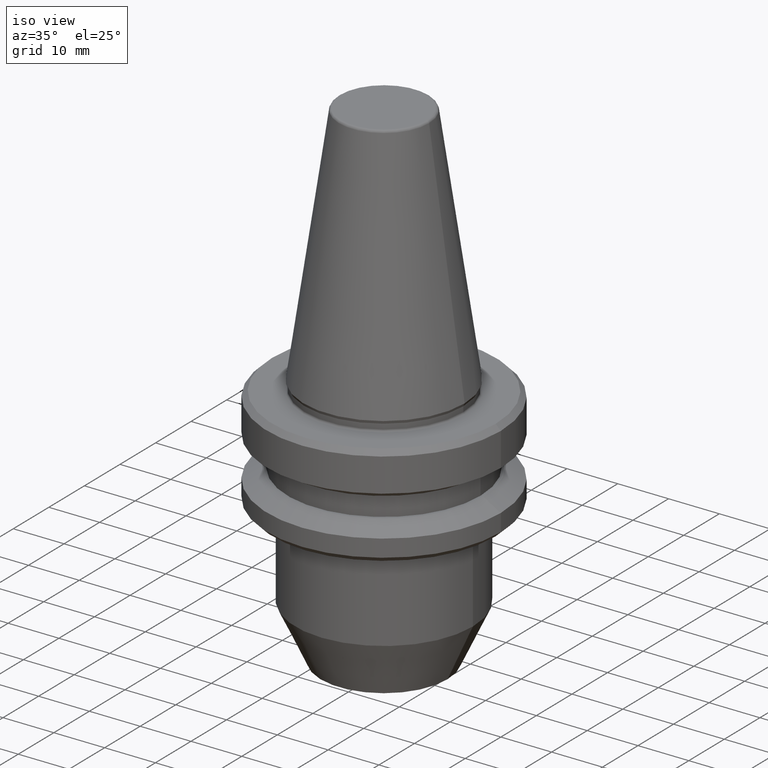
[diagram: clean part render]
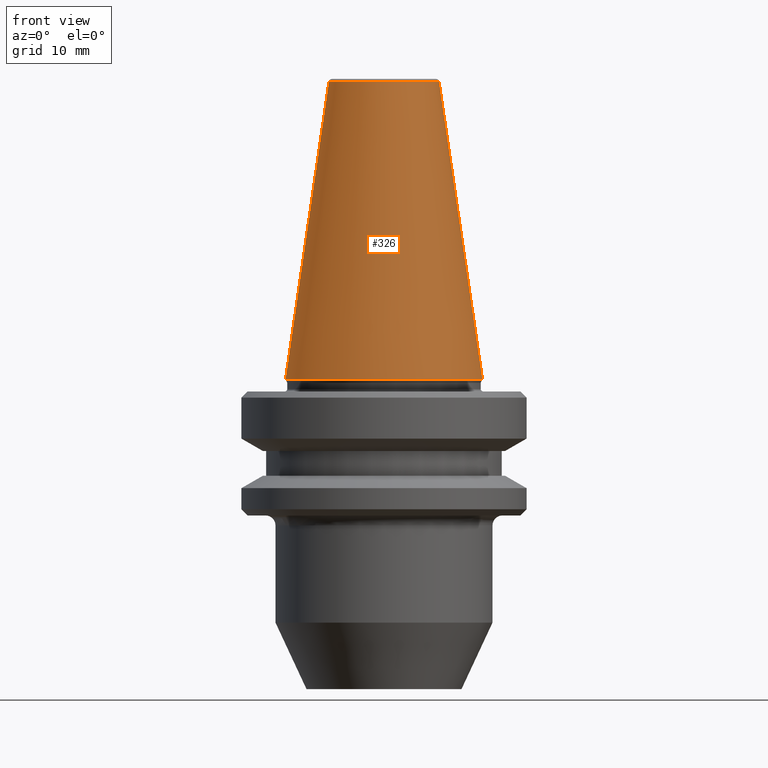
[diagram: tour spotlight — one face highlighted and labeled with its STEP entity id]
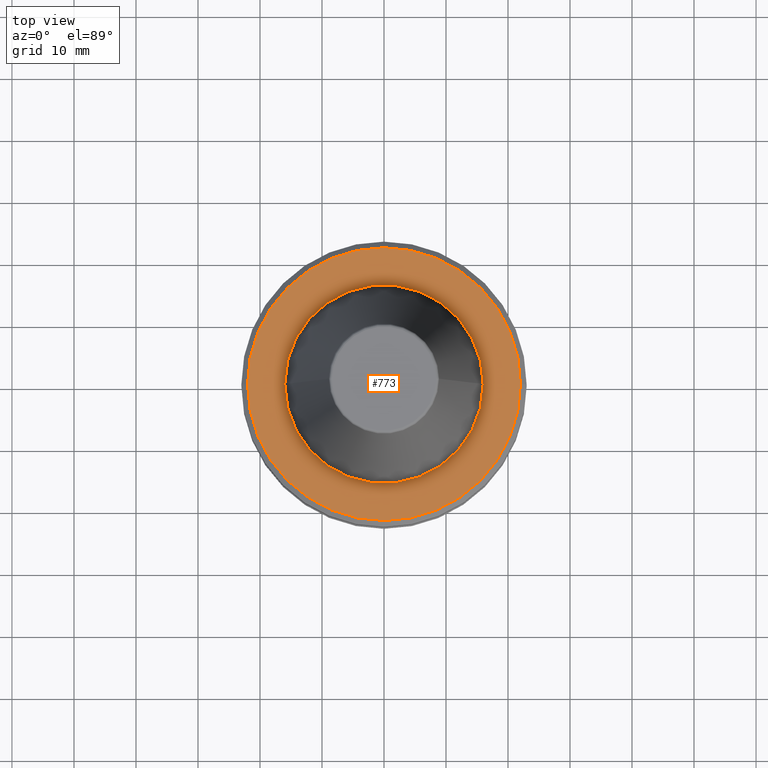
[diagram: tour spotlight — one face highlighted and labeled with its STEP entity id]
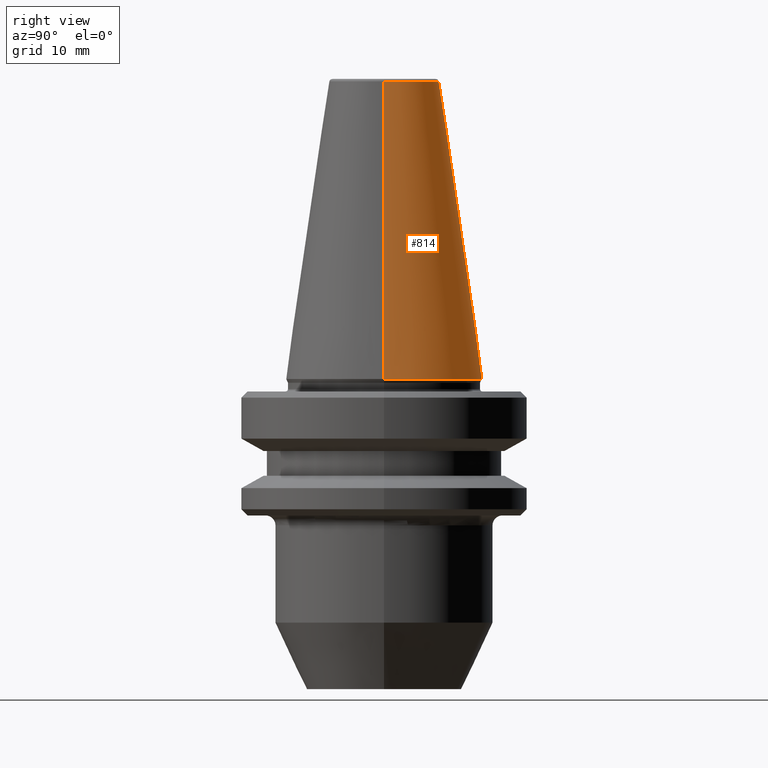
[diagram: tour spotlight — one face highlighted and labeled with its STEP entity id]
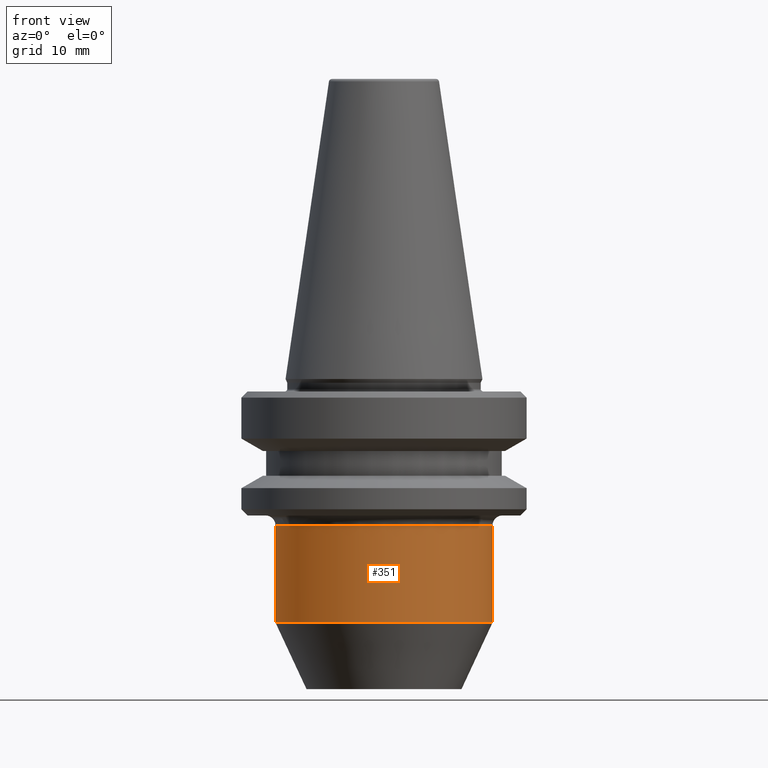
[diagram: tour spotlight — one face highlighted and labeled with its STEP entity id]
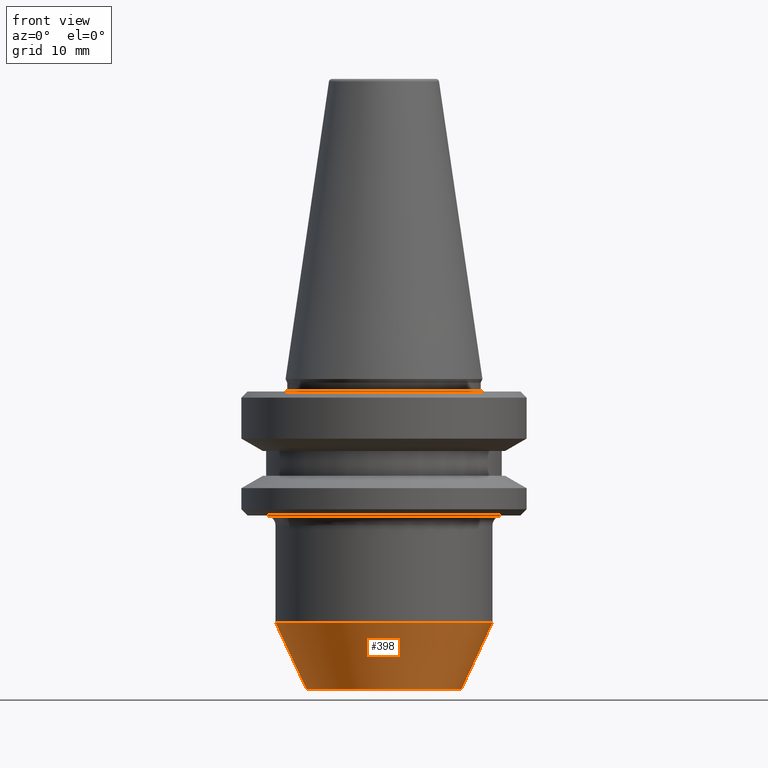
[diagram: tour spotlight — one face highlighted and labeled with its STEP entity id]
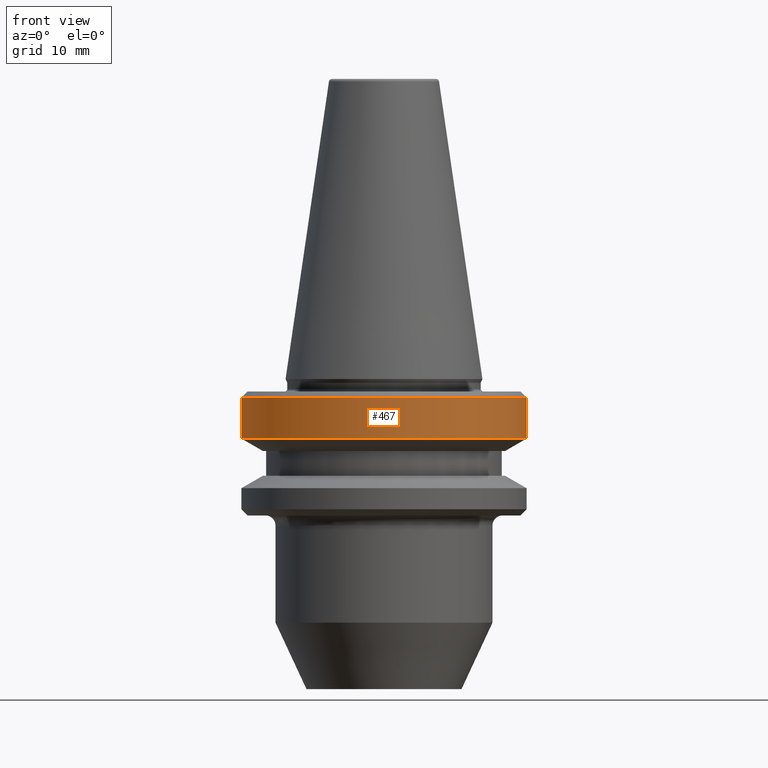
[diagram: tour spotlight — one face highlighted and labeled with its STEP entity id]
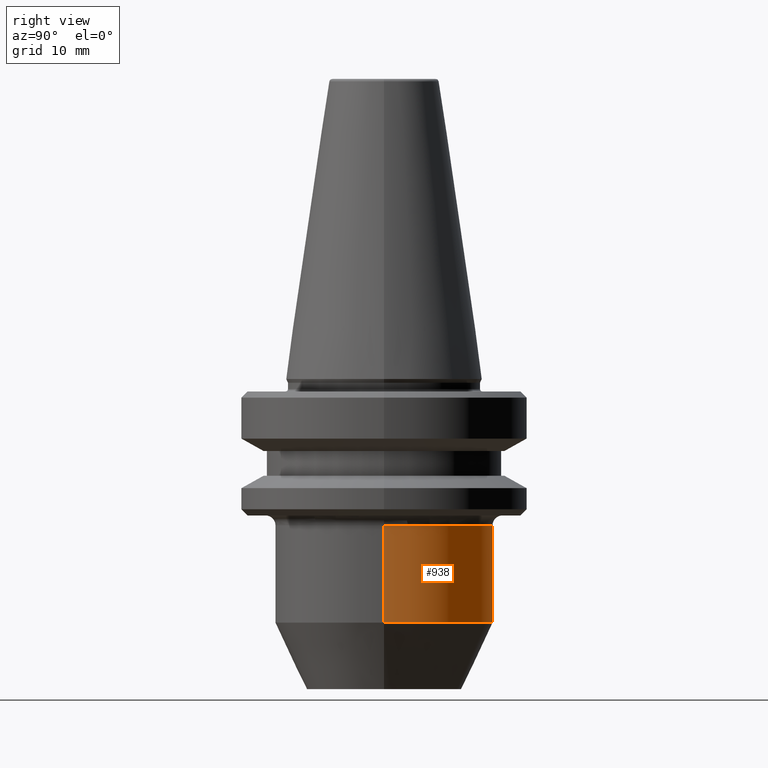
[diagram: tour spotlight — one face highlighted and labeled with its STEP entity id]
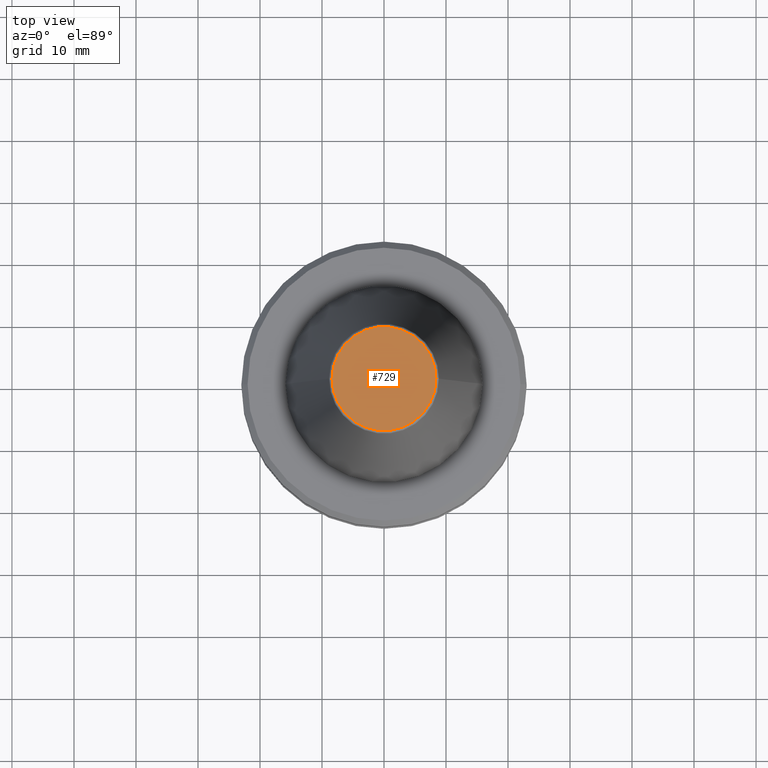
[diagram: tour spotlight — one face highlighted and labeled with its STEP entity id]
A machine part: a face-by-face anatomy tour. The part has 36 B-rep faces; the first image is the clean iso view, then the 8 largest visible faces are spotlighted one at a time (largest first), each with its STEP entity span.

Face 1 — front view, entity #326. In plain terms, the highlighted conical surface has half-angle 8.297 deg.
Definition (entity closure, byte-faithful):
#5 = EDGE_CURVE ( 'NONE', #921, #519, #388, .T. ) ;
#7 = DIRECTION ( 'NONE',  ( 0.1443082268834997600, 1.767266081435079900E-017, -0.9895327865481469100 ) ) ;
#48 = CARTESIAN_POINT ( 'NONE',  ( 15.87499999999930700, 0.0000000000000000000, 2.220446049250313100E-013 ) ) ;
#86 = VERTEX_POINT ( 'NONE', #355 ) ;
#92 = DIRECTION ( 'NONE',  ( -1.000000000000000000, 0.0000000000000000000, 0.0000000000000000000 ) ) ;
#119 = FACE_OUTER_BOUND ( 'NONE', #481, .T. ) ;
#133 = EDGE_CURVE ( 'NONE', #519, #392, #889, .T. ) ;
#147 = ORIENTED_EDGE ( 'NONE', *, *, #614, .F. ) ;
#190 = VECTOR ( 'NONE', #646, 1000.000000000000100 ) ;
#302 = CARTESIAN_POINT ( 'NONE',  ( -15.87499999999930700, 0.0000000000000000000, 2.220446049250313100E-013 ) ) ;
#326 = ADVANCED_FACE ( 'NONE', ( #119 ), #476, .T. ) ;
#335 = DIRECTION ( 'NONE',  ( 0.0000000000000000000, 0.0000000000000000000, -1.000000000000000000 ) ) ;
#336 = ORIENTED_EDGE ( 'NONE', *, *, #133, .T. ) ;
#342 = CARTESIAN_POINT ( 'NONE',  ( 15.87499999999930700, 1.944126793646338400E-015, 2.220446049250313100E-013 ) ) ;
#348 = AXIS2_PLACEMENT_3D ( 'NONE', #448, #335, #92 ) ;
#355 = CARTESIAN_POINT ( 'NONE',  ( 8.878994820583395500, 1.515745026156838400E-015, 47.97215411344146900 ) ) ;
#388 = LINE ( 'NONE', #302, #190 ) ;
#392 = VERTEX_POINT ( 'NONE', #48 ) ;
#409 = CIRCLE ( 'NONE', #671, 8.878994820583395500 ) ;
#448 = CARTESIAN_POINT ( 'NONE',  ( 0.0000000000000000000, 0.0000000000000000000, 2.220446049250313100E-013 ) ) ;
#476 = CONICAL_SURFACE ( 'NONE', #348, 15.87499999999930700, 0.1448138461595519000 ) ;
#478 = DIRECTION ( 'NONE',  ( -0.0000000000000000000, -0.0000000000000000000, 1.000000000000000000 ) ) ;
#481 = EDGE_LOOP ( 'NONE', ( #147, #772, #833, #336 ) ) ;
#519 = VERTEX_POINT ( 'NONE', #771 ) ;
#573 = DIRECTION ( 'NONE',  ( -0.0000000000000000000, -0.0000000000000000000, 1.000000000000000000 ) ) ;
#587 = VECTOR ( 'NONE', #7, 1000.000000000000100 ) ;
#595 = EDGE_CURVE ( 'NONE', #921, #86, #409, .T. ) ;
#614 = EDGE_CURVE ( 'NONE', #86, #392, #810, .T. ) ;
#626 = CARTESIAN_POINT ( 'NONE',  ( -8.878994820583395500, 0.0000000000000000000, 47.97215411344146900 ) ) ;
#646 = DIRECTION ( 'NONE',  ( -0.1443082268834997600, 0.0000000000000000000, -0.9895327865481469100 ) ) ;
#659 = CARTESIAN_POINT ( 'NONE',  ( 0.0000000000000000000, 0.0000000000000000000, 2.220446049250313100E-013 ) ) ;
#671 = AXIS2_PLACEMENT_3D ( 'NONE', #807, #573, #680 ) ;
#680 = DIRECTION ( 'NONE',  ( 1.000000000000000000, 0.0000000000000000000, 0.0000000000000000000 ) ) ;
#716 = DIRECTION ( 'NONE',  ( 1.000000000000000000, 0.0000000000000000000, 0.0000000000000000000 ) ) ;
#771 = CARTESIAN_POINT ( 'NONE',  ( -15.87499999999930700, 1.944126793646338400E-015, 2.220446049250313100E-013 ) ) ;
#772 = ORIENTED_EDGE ( 'NONE', *, *, #595, .F. ) ;
#807 = CARTESIAN_POINT ( 'NONE',  ( 0.0000000000000000000, 0.0000000000000000000, 47.97215411344146900 ) ) ;
#810 = LINE ( 'NONE', #342, #587 ) ;
#820 = AXIS2_PLACEMENT_3D ( 'NONE', #659, #478, #716 ) ;
#833 = ORIENTED_EDGE ( 'NONE', *, *, #5, .T. ) ;
#889 = CIRCLE ( 'NONE', #820, 15.87499999999930700 ) ;
#921 = VERTEX_POINT ( 'NONE', #626 ) ;

Face 2 — top view, entity #773. In plain terms, the highlighted planar face has unit normal (0, 0, -1).
Definition (entity closure, byte-faithful):
#20 = CIRCLE ( 'NONE', #256, 16.00000000000056800 ) ;
#23 = CARTESIAN_POINT ( 'NONE',  ( -22.00000000000002100, 0.0000000000000000000, -1.999999999999779700 ) ) ;
#43 = CIRCLE ( 'NONE', #330, 22.00000000000002100 ) ;
#50 = AXIS2_PLACEMENT_3D ( 'NONE', #978, #265, #160 ) ;
#57 = CARTESIAN_POINT ( 'NONE',  ( 0.0000000000000000000, 0.0000000000000000000, -1.999999999999779700 ) ) ;
#67 = DIRECTION ( 'NONE',  ( 1.000000000000000000, 0.0000000000000000000, 0.0000000000000000000 ) ) ;
#84 = EDGE_CURVE ( 'NONE', #782, #529, #913, .T. ) ;
#146 = CARTESIAN_POINT ( 'NONE',  ( 22.00000000000002100, 2.755455298081547100E-015, -1.999999999999779700 ) ) ;
#158 = DIRECTION ( 'NONE',  ( 0.0000000000000000000, 0.0000000000000000000, -1.000000000000000000 ) ) ;
#160 = DIRECTION ( 'NONE',  ( 1.000000000000000000, 0.0000000000000000000, 0.0000000000000000000 ) ) ;
#165 = DIRECTION ( 'NONE',  ( -0.0000000000000000000, -0.0000000000000000000, 1.000000000000000000 ) ) ;
#181 = EDGE_CURVE ( 'NONE', #529, #782, #43, .T. ) ;
#215 = AXIS2_PLACEMENT_3D ( 'NONE', #245, #158, #429 ) ;
#224 = EDGE_CURVE ( 'NONE', #960, #231, #20, .T. ) ;
#231 = VERTEX_POINT ( 'NONE', #993 ) ;
#245 = CARTESIAN_POINT ( 'NONE',  ( 0.0000000000000000000, 22.00000000000002100, -1.999999999999946300 ) ) ;
#256 = AXIS2_PLACEMENT_3D ( 'NONE', #332, #803, #864 ) ;
#263 = AXIS2_PLACEMENT_3D ( 'NONE', #904, #165, #486 ) ;
#265 = DIRECTION ( 'NONE',  ( -0.0000000000000000000, -0.0000000000000000000, 1.000000000000000000 ) ) ;
#293 = FACE_BOUND ( 'NONE', #910, .T. ) ;
#330 = AXIS2_PLACEMENT_3D ( 'NONE', #57, #976, #67 ) ;
#332 = CARTESIAN_POINT ( 'NONE',  ( 0.0000000000000000000, 0.0000000000000000000, -2.000000000000112800 ) ) ;
#346 = ORIENTED_EDGE ( 'NONE', *, *, #414, .F. ) ;
#378 = PLANE ( 'NONE',  #215 ) ;
#399 = CIRCLE ( 'NONE', #50, 16.00000000000056800 ) ;
#414 = EDGE_CURVE ( 'NONE', #231, #960, #399, .T. ) ;
#429 = DIRECTION ( 'NONE',  ( -1.000000000000000000, 0.0000000000000000000, -0.0000000000000000000 ) ) ;
#486 = DIRECTION ( 'NONE',  ( 1.000000000000000000, 0.0000000000000000000, 0.0000000000000000000 ) ) ;
#500 = FACE_OUTER_BOUND ( 'NONE', #760, .T. ) ;
#529 = VERTEX_POINT ( 'NONE', #146 ) ;
#535 = ORIENTED_EDGE ( 'NONE', *, *, #181, .T. ) ;
#690 = ORIENTED_EDGE ( 'NONE', *, *, #84, .T. ) ;
#760 = EDGE_LOOP ( 'NONE', ( #690, #535 ) ) ;
#773 = ADVANCED_FACE ( 'NONE', ( #293, #500 ), #378, .F. ) ;
#782 = VERTEX_POINT ( 'NONE', #23 ) ;
#803 = DIRECTION ( 'NONE',  ( -0.0000000000000000000, -0.0000000000000000000, 1.000000000000000000 ) ) ;
#823 = ORIENTED_EDGE ( 'NONE', *, *, #224, .F. ) ;
#861 = CARTESIAN_POINT ( 'NONE',  ( 16.00000000000062500, 0.0000000000000000000, -2.000000000000112800 ) ) ;
#864 = DIRECTION ( 'NONE',  ( 1.000000000000000000, 0.0000000000000000000, 0.0000000000000000000 ) ) ;
#904 = CARTESIAN_POINT ( 'NONE',  ( 0.0000000000000000000, 0.0000000000000000000, -1.999999999999779700 ) ) ;
#910 = EDGE_LOOP ( 'NONE', ( #823, #346 ) ) ;
#913 = CIRCLE ( 'NONE', #263, 22.00000000000002100 ) ;
#960 = VERTEX_POINT ( 'NONE', #861 ) ;
#976 = DIRECTION ( 'NONE',  ( -0.0000000000000000000, -0.0000000000000000000, 1.000000000000000000 ) ) ;
#978 = CARTESIAN_POINT ( 'NONE',  ( 0.0000000000000000000, 0.0000000000000000000, -2.000000000000112800 ) ) ;
#993 = CARTESIAN_POINT ( 'NONE',  ( -16.00000000000062500, 1.959434878635841700E-015, -2.000000000000112800 ) ) ;

Face 3 — right view, entity #814. In plain terms, the highlighted conical surface has half-angle 8.297 deg.
Definition (entity closure, byte-faithful):
#5 = EDGE_CURVE ( 'NONE', #921, #519, #388, .T. ) ;
#7 = DIRECTION ( 'NONE',  ( 0.1443082268834997600, 1.767266081435079900E-017, -0.9895327865481469100 ) ) ;
#48 = CARTESIAN_POINT ( 'NONE',  ( 15.87499999999930700, 0.0000000000000000000, 2.220446049250313100E-013 ) ) ;
#83 = DIRECTION ( 'NONE',  ( 0.0000000000000000000, 0.0000000000000000000, -1.000000000000000000 ) ) ;
#86 = VERTEX_POINT ( 'NONE', #355 ) ;
#190 = VECTOR ( 'NONE', #646, 1000.000000000000100 ) ;
#191 = AXIS2_PLACEMENT_3D ( 'NONE', #737, #735, #799 ) ;
#248 = AXIS2_PLACEMENT_3D ( 'NONE', #1000, #83, #892 ) ;
#302 = CARTESIAN_POINT ( 'NONE',  ( -15.87499999999930700, 0.0000000000000000000, 2.220446049250313100E-013 ) ) ;
#327 = CIRCLE ( 'NONE', #191, 15.87499999999930700 ) ;
#334 = ORIENTED_EDGE ( 'NONE', *, *, #465, .F. ) ;
#338 = DIRECTION ( 'NONE',  ( 1.000000000000000000, 0.0000000000000000000, 0.0000000000000000000 ) ) ;
#342 = CARTESIAN_POINT ( 'NONE',  ( 15.87499999999930700, 1.944126793646338400E-015, 2.220446049250313100E-013 ) ) ;
#355 = CARTESIAN_POINT ( 'NONE',  ( 8.878994820583395500, 1.515745026156838400E-015, 47.97215411344146900 ) ) ;
#387 = DIRECTION ( 'NONE',  ( -0.0000000000000000000, -0.0000000000000000000, 1.000000000000000000 ) ) ;
#388 = LINE ( 'NONE', #302, #190 ) ;
#392 = VERTEX_POINT ( 'NONE', #48 ) ;
#465 = EDGE_CURVE ( 'NONE', #86, #921, #968, .T. ) ;
#471 = CONICAL_SURFACE ( 'NONE', #248, 15.87499999999930700, 0.1448138461595519000 ) ;
#491 = ORIENTED_EDGE ( 'NONE', *, *, #950, .T. ) ;
#519 = VERTEX_POINT ( 'NONE', #771 ) ;
#568 = EDGE_LOOP ( 'NONE', ( #334, #678, #491, #755 ) ) ;
#587 = VECTOR ( 'NONE', #7, 1000.000000000000100 ) ;
#614 = EDGE_CURVE ( 'NONE', #86, #392, #810, .T. ) ;
#626 = CARTESIAN_POINT ( 'NONE',  ( -8.878994820583395500, 0.0000000000000000000, 47.97215411344146900 ) ) ;
#646 = DIRECTION ( 'NONE',  ( -0.1443082268834997600, 0.0000000000000000000, -0.9895327865481469100 ) ) ;
#678 = ORIENTED_EDGE ( 'NONE', *, *, #614, .T. ) ;
#735 = DIRECTION ( 'NONE',  ( -0.0000000000000000000, -0.0000000000000000000, 1.000000000000000000 ) ) ;
#737 = CARTESIAN_POINT ( 'NONE',  ( 0.0000000000000000000, 0.0000000000000000000, 2.220446049250313100E-013 ) ) ;
#755 = ORIENTED_EDGE ( 'NONE', *, *, #5, .F. ) ;
#771 = CARTESIAN_POINT ( 'NONE',  ( -15.87499999999930700, 1.944126793646338400E-015, 2.220446049250313100E-013 ) ) ;
#799 = DIRECTION ( 'NONE',  ( 1.000000000000000000, 0.0000000000000000000, 0.0000000000000000000 ) ) ;
#810 = LINE ( 'NONE', #342, #587 ) ;
#814 = ADVANCED_FACE ( 'NONE', ( #867 ), #471, .T. ) ;
#839 = AXIS2_PLACEMENT_3D ( 'NONE', #932, #387, #338 ) ;
#867 = FACE_OUTER_BOUND ( 'NONE', #568, .T. ) ;
#892 = DIRECTION ( 'NONE',  ( -1.000000000000000000, 0.0000000000000000000, 0.0000000000000000000 ) ) ;
#921 = VERTEX_POINT ( 'NONE', #626 ) ;
#932 = CARTESIAN_POINT ( 'NONE',  ( 0.0000000000000000000, 0.0000000000000000000, 47.97215411344146900 ) ) ;
#950 = EDGE_CURVE ( 'NONE', #392, #519, #327, .T. ) ;
#968 = CIRCLE ( 'NONE', #839, 8.878994820583395500 ) ;
#1000 = CARTESIAN_POINT ( 'NONE',  ( 0.0000000000000000000, 0.0000000000000000000, 2.220446049250313100E-013 ) ) ;

Face 4 — front view, entity #351. In plain terms, the highlighted cylindrical surface (partial cylindrical patch) has radius 17.5 mm, axis along (-0, -0, 1).
Definition (entity closure, byte-faithful):
#11 = CARTESIAN_POINT ( 'NONE',  ( -17.49999999999849000, 2.143131898507683300E-015, 106.7296997704041000 ) ) ;
#12 = EDGE_CURVE ( 'NONE', #570, #492, #775, .T. ) ;
#32 = VERTEX_POINT ( 'NONE', #415 ) ;
#55 = AXIS2_PLACEMENT_3D ( 'NONE', #178, #756, #564 ) ;
#62 = EDGE_CURVE ( 'NONE', #32, #672, #141, .T. ) ;
#124 = ORIENTED_EDGE ( 'NONE', *, *, #511, .F. ) ;
#141 = LINE ( 'NONE', #11, #518 ) ;
#178 = CARTESIAN_POINT ( 'NONE',  ( 0.0000000000000000000, 0.0000000000000000000, -23.59999999999983100 ) ) ;
#202 = CIRCLE ( 'NONE', #895, 17.49999999999851500 ) ;
#218 = DIRECTION ( 'NONE',  ( -0.0000000000000000000, -0.0000000000000000000, 1.000000000000000000 ) ) ;
#230 = CARTESIAN_POINT ( 'NONE',  ( -17.49999999999846200, 2.143131898507681700E-015, -23.59999999999983100 ) ) ;
#233 = ORIENTED_EDGE ( 'NONE', *, *, #62, .F. ) ;
#331 = CIRCLE ( 'NONE', #55, 17.49999999999846200 ) ;
#351 = ADVANCED_FACE ( 'NONE', ( #523 ), #651, .T. ) ;
#375 = DIRECTION ( 'NONE',  ( -0.0000000000000000000, -0.0000000000000000000, 1.000000000000000000 ) ) ;
#401 = EDGE_CURVE ( 'NONE', #32, #570, #202, .T. ) ;
#415 = CARTESIAN_POINT ( 'NONE',  ( -17.49999999999851500, 2.143131898507686400E-015, -39.27746539745256600 ) ) ;
#463 = CARTESIAN_POINT ( 'NONE',  ( 17.49999999999846200, 0.0000000000000000000, -23.59999999999983100 ) ) ;
#492 = VERTEX_POINT ( 'NONE', #463 ) ;
#506 = DIRECTION ( 'NONE',  ( 1.000000000000000000, 0.0000000000000000000, 0.0000000000000000000 ) ) ;
#511 = EDGE_CURVE ( 'NONE', #672, #492, #331, .T. ) ;
#513 = ORIENTED_EDGE ( 'NONE', *, *, #12, .T. ) ;
#518 = VECTOR ( 'NONE', #584, 1000.000000000000000 ) ;
#523 = FACE_OUTER_BOUND ( 'NONE', #804, .T. ) ;
#563 = VECTOR ( 'NONE', #375, 1000.000000000000000 ) ;
#564 = DIRECTION ( 'NONE',  ( 1.000000000000000000, 0.0000000000000000000, 0.0000000000000000000 ) ) ;
#570 = VERTEX_POINT ( 'NONE', #779 ) ;
#584 = DIRECTION ( 'NONE',  ( -0.0000000000000000000, -0.0000000000000000000, 1.000000000000000000 ) ) ;
#644 = DIRECTION ( 'NONE',  ( 1.000000000000000000, 0.0000000000000000000, 0.0000000000000000000 ) ) ;
#651 = CYLINDRICAL_SURFACE ( 'NONE', #786, 17.49999999999849000 ) ;
#657 = CARTESIAN_POINT ( 'NONE',  ( 17.49999999999849000, 0.0000000000000000000, 106.7296997704041000 ) ) ;
#672 = VERTEX_POINT ( 'NONE', #230 ) ;
#756 = DIRECTION ( 'NONE',  ( -0.0000000000000000000, -0.0000000000000000000, 1.000000000000000000 ) ) ;
#775 = LINE ( 'NONE', #657, #563 ) ;
#779 = CARTESIAN_POINT ( 'NONE',  ( 17.49999999999851500, 0.0000000000000000000, -39.27746539745256600 ) ) ;
#786 = AXIS2_PLACEMENT_3D ( 'NONE', #809, #218, #644 ) ;
#804 = EDGE_LOOP ( 'NONE', ( #233, #811, #513, #124 ) ) ;
#809 = CARTESIAN_POINT ( 'NONE',  ( 0.0000000000000000000, 0.0000000000000000000, 106.7296997704041000 ) ) ;
#811 = ORIENTED_EDGE ( 'NONE', *, *, #401, .T. ) ;
#818 = CARTESIAN_POINT ( 'NONE',  ( 0.0000000000000000000, 0.0000000000000000000, -39.27746539745256600 ) ) ;
#895 = AXIS2_PLACEMENT_3D ( 'NONE', #818, #901, #506 ) ;
#901 = DIRECTION ( 'NONE',  ( -0.0000000000000000000, -0.0000000000000000000, 1.000000000000000000 ) ) ;

Face 5 — front view, entity #398. In plain terms, the highlighted conical surface has half-angle 25 deg.
Definition (entity closure, byte-faithful):
#32 = VERTEX_POINT ( 'NONE', #415 ) ;
#39 = ORIENTED_EDGE ( 'NONE', *, *, #183, .T. ) ;
#44 = DIRECTION ( 'NONE',  ( -0.4226182617407099300, 5.175581015019787600E-017, 0.9063077870366450500 ) ) ;
#63 = DIRECTION ( 'NONE',  ( 1.000000000000000000, 0.0000000000000000000, 0.0000000000000000000 ) ) ;
#69 = DIRECTION ( 'NONE',  ( 0.4226182617407099300, 0.0000000000000000000, 0.9063077870366450500 ) ) ;
#73 = EDGE_LOOP ( 'NONE', ( #340, #39, #288, #784 ) ) ;
#145 = EDGE_CURVE ( 'NONE', #276, #32, #470, .T. ) ;
#177 = AXIS2_PLACEMENT_3D ( 'NONE', #870, #268, #228 ) ;
#183 = EDGE_CURVE ( 'NONE', #276, #204, #835, .T. ) ;
#193 = LINE ( 'NONE', #417, #551 ) ;
#202 = CIRCLE ( 'NONE', #895, 17.49999999999851500 ) ;
#204 = VERTEX_POINT ( 'NONE', #816 ) ;
#220 = CARTESIAN_POINT ( 'NONE',  ( -12.49999999999862300, 1.836970198720854900E-015, -49.99999999999980800 ) ) ;
#228 = DIRECTION ( 'NONE',  ( 1.000000000000000000, 0.0000000000000000000, 0.0000000000000000000 ) ) ;
#268 = DIRECTION ( 'NONE',  ( -0.0000000000000000000, -0.0000000000000000000, 1.000000000000000000 ) ) ;
#276 = VERTEX_POINT ( 'NONE', #220 ) ;
#286 = DIRECTION ( 'NONE',  ( -0.0000000000000000000, -0.0000000000000000000, 1.000000000000000000 ) ) ;
#288 = ORIENTED_EDGE ( 'NONE', *, *, #694, .T. ) ;
#340 = ORIENTED_EDGE ( 'NONE', *, *, #145, .F. ) ;
#398 = ADVANCED_FACE ( 'NONE', ( #846 ), #998, .T. ) ;
#401 = EDGE_CURVE ( 'NONE', #32, #570, #202, .T. ) ;
#415 = CARTESIAN_POINT ( 'NONE',  ( -17.49999999999851500, 2.143131898507686400E-015, -39.27746539745256600 ) ) ;
#417 = CARTESIAN_POINT ( 'NONE',  ( 12.49999999999862300, 0.0000000000000000000, -49.99999999999980800 ) ) ;
#470 = LINE ( 'NONE', #525, #650 ) ;
#506 = DIRECTION ( 'NONE',  ( 1.000000000000000000, 0.0000000000000000000, 0.0000000000000000000 ) ) ;
#525 = CARTESIAN_POINT ( 'NONE',  ( -12.49999999999862300, 1.530808498934022900E-015, -49.99999999999980800 ) ) ;
#551 = VECTOR ( 'NONE', #69, 1000.000000000000000 ) ;
#570 = VERTEX_POINT ( 'NONE', #779 ) ;
#650 = VECTOR ( 'NONE', #44, 1000.000000000000000 ) ;
#694 = EDGE_CURVE ( 'NONE', #204, #570, #193, .T. ) ;
#723 = AXIS2_PLACEMENT_3D ( 'NONE', #912, #286, #63 ) ;
#779 = CARTESIAN_POINT ( 'NONE',  ( 17.49999999999851500, 0.0000000000000000000, -39.27746539745256600 ) ) ;
#784 = ORIENTED_EDGE ( 'NONE', *, *, #401, .F. ) ;
#816 = CARTESIAN_POINT ( 'NONE',  ( 12.49999999999862300, 0.0000000000000000000, -49.99999999999980800 ) ) ;
#818 = CARTESIAN_POINT ( 'NONE',  ( 0.0000000000000000000, 0.0000000000000000000, -39.27746539745256600 ) ) ;
#835 = CIRCLE ( 'NONE', #723, 12.49999999999862300 ) ;
#846 = FACE_OUTER_BOUND ( 'NONE', #73, .T. ) ;
#870 = CARTESIAN_POINT ( 'NONE',  ( 0.0000000000000000000, 0.0000000000000000000, -49.99999999999980800 ) ) ;
#895 = AXIS2_PLACEMENT_3D ( 'NONE', #818, #901, #506 ) ;
#901 = DIRECTION ( 'NONE',  ( -0.0000000000000000000, -0.0000000000000000000, 1.000000000000000000 ) ) ;
#912 = CARTESIAN_POINT ( 'NONE',  ( 0.0000000000000000000, 0.0000000000000000000, -49.99999999999980800 ) ) ;
#998 = CONICAL_SURFACE ( 'NONE', #177, 12.49999999999862300, 0.4363323129985939900 ) ;

Face 6 — front view, entity #467. In plain terms, the highlighted cylindrical surface (partial cylindrical patch) has radius 23 mm, axis along (-0, -0, 1).
Definition (entity closure, byte-faithful):
#2 = CARTESIAN_POINT ( 'NONE',  ( 23.00000000000002100, 0.0000000000000000000, 106.7296997704041000 ) ) ;
#18 = CARTESIAN_POINT ( 'NONE',  ( 0.0000000000000000000, 0.0000000000000000000, 106.7296997704041000 ) ) ;
#22 = CARTESIAN_POINT ( 'NONE',  ( 0.0000000000000000000, 0.0000000000000000000, -9.600117335054392200 ) ) ;
#30 = DIRECTION ( 'NONE',  ( -0.0000000000000000000, -0.0000000000000000000, 1.000000000000000000 ) ) ;
#52 = VERTEX_POINT ( 'NONE', #366 ) ;
#82 = EDGE_CURVE ( 'NONE', #52, #608, #321, .T. ) ;
#137 = AXIS2_PLACEMENT_3D ( 'NONE', #538, #30, #632 ) ;
#154 = EDGE_LOOP ( 'NONE', ( #808, #697, #329, #173 ) ) ;
#172 = EDGE_CURVE ( 'NONE', #878, #206, #243, .T. ) ;
#173 = ORIENTED_EDGE ( 'NONE', *, *, #962, .F. ) ;
#182 = FACE_OUTER_BOUND ( 'NONE', #154, .T. ) ;
#206 = VERTEX_POINT ( 'NONE', #652 ) ;
#243 = LINE ( 'NONE', #611, #642 ) ;
#284 = DIRECTION ( 'NONE',  ( -0.0000000000000000000, -0.0000000000000000000, 1.000000000000000000 ) ) ;
#321 = LINE ( 'NONE', #2, #698 ) ;
#329 = ORIENTED_EDGE ( 'NONE', *, *, #82, .T. ) ;
#339 = DIRECTION ( 'NONE',  ( -0.0000000000000000000, -0.0000000000000000000, 1.000000000000000000 ) ) ;
#366 = CARTESIAN_POINT ( 'NONE',  ( 23.00000000000002100, 0.0000000000000000000, -9.600117335054392200 ) ) ;
#435 = CARTESIAN_POINT ( 'NONE',  ( -23.00000000000002100, 2.816687638038914700E-015, -9.600117335054392200 ) ) ;
#467 = ADVANCED_FACE ( 'NONE', ( #182 ), #736, .T. ) ;
#538 = CARTESIAN_POINT ( 'NONE',  ( 0.0000000000000000000, 0.0000000000000000000, -2.999999999999891600 ) ) ;
#545 = DIRECTION ( 'NONE',  ( 1.000000000000000000, 0.0000000000000000000, 0.0000000000000000000 ) ) ;
#608 = VERTEX_POINT ( 'NONE', #967 ) ;
#611 = CARTESIAN_POINT ( 'NONE',  ( -23.00000000000002100, 2.816687638038915100E-015, 106.7296997704041000 ) ) ;
#632 = DIRECTION ( 'NONE',  ( 1.000000000000000000, 0.0000000000000000000, 0.0000000000000000000 ) ) ;
#642 = VECTOR ( 'NONE', #339, 1000.000000000000000 ) ;
#648 = DIRECTION ( 'NONE',  ( -0.0000000000000000000, -0.0000000000000000000, 1.000000000000000000 ) ) ;
#652 = CARTESIAN_POINT ( 'NONE',  ( -23.00000000000002100, 2.816687638038915100E-015, -2.999999999999891600 ) ) ;
#681 = CIRCLE ( 'NONE', #741, 23.00000000000002100 ) ;
#691 = DIRECTION ( 'NONE',  ( -0.0000000000000000000, -0.0000000000000000000, 1.000000000000000000 ) ) ;
#697 = ORIENTED_EDGE ( 'NONE', *, *, #791, .T. ) ;
#698 = VECTOR ( 'NONE', #648, 1000.000000000000000 ) ;
#732 = DIRECTION ( 'NONE',  ( 1.000000000000000000, 0.0000000000000000000, 0.0000000000000000000 ) ) ;
#736 = CYLINDRICAL_SURFACE ( 'NONE', #871, 23.00000000000002100 ) ;
#741 = AXIS2_PLACEMENT_3D ( 'NONE', #22, #691, #545 ) ;
#791 = EDGE_CURVE ( 'NONE', #878, #52, #681, .T. ) ;
#808 = ORIENTED_EDGE ( 'NONE', *, *, #172, .F. ) ;
#871 = AXIS2_PLACEMENT_3D ( 'NONE', #18, #284, #732 ) ;
#878 = VERTEX_POINT ( 'NONE', #435 ) ;
#924 = CIRCLE ( 'NONE', #137, 23.00000000000002100 ) ;
#962 = EDGE_CURVE ( 'NONE', #206, #608, #924, .T. ) ;
#967 = CARTESIAN_POINT ( 'NONE',  ( 23.00000000000002100, 0.0000000000000000000, -2.999999999999891600 ) ) ;

Face 7 — right view, entity #938. In plain terms, the highlighted cylindrical surface (partial cylindrical patch) has radius 17.5 mm, axis along (-0, -0, 1).
Definition (entity closure, byte-faithful):
#11 = CARTESIAN_POINT ( 'NONE',  ( -17.49999999999849000, 2.143131898507683300E-015, 106.7296997704041000 ) ) ;
#12 = EDGE_CURVE ( 'NONE', #570, #492, #775, .T. ) ;
#32 = VERTEX_POINT ( 'NONE', #415 ) ;
#62 = EDGE_CURVE ( 'NONE', #32, #672, #141, .T. ) ;
#87 = DIRECTION ( 'NONE',  ( 1.000000000000000000, 0.0000000000000000000, 0.0000000000000000000 ) ) ;
#97 = CARTESIAN_POINT ( 'NONE',  ( 0.0000000000000000000, 0.0000000000000000000, 106.7296997704041000 ) ) ;
#102 = CYLINDRICAL_SURFACE ( 'NONE', #826, 17.49999999999849000 ) ;
#141 = LINE ( 'NONE', #11, #518 ) ;
#150 = FACE_OUTER_BOUND ( 'NONE', #704, .T. ) ;
#230 = CARTESIAN_POINT ( 'NONE',  ( -17.49999999999846200, 2.143131898507681700E-015, -23.59999999999983100 ) ) ;
#251 = ORIENTED_EDGE ( 'NONE', *, *, #347, .F. ) ;
#323 = CIRCLE ( 'NONE', #667, 17.49999999999846200 ) ;
#347 = EDGE_CURVE ( 'NONE', #492, #672, #323, .T. ) ;
#372 = CIRCLE ( 'NONE', #566, 17.49999999999851500 ) ;
#375 = DIRECTION ( 'NONE',  ( -0.0000000000000000000, -0.0000000000000000000, 1.000000000000000000 ) ) ;
#415 = CARTESIAN_POINT ( 'NONE',  ( -17.49999999999851500, 2.143131898507686400E-015, -39.27746539745256600 ) ) ;
#462 = DIRECTION ( 'NONE',  ( -0.0000000000000000000, -0.0000000000000000000, 1.000000000000000000 ) ) ;
#463 = CARTESIAN_POINT ( 'NONE',  ( 17.49999999999846200, 0.0000000000000000000, -23.59999999999983100 ) ) ;
#492 = VERTEX_POINT ( 'NONE', #463 ) ;
#518 = VECTOR ( 'NONE', #584, 1000.000000000000000 ) ;
#563 = VECTOR ( 'NONE', #375, 1000.000000000000000 ) ;
#566 = AXIS2_PLACEMENT_3D ( 'NONE', #687, #603, #847 ) ;
#570 = VERTEX_POINT ( 'NONE', #779 ) ;
#580 = ORIENTED_EDGE ( 'NONE', *, *, #865, .T. ) ;
#584 = DIRECTION ( 'NONE',  ( -0.0000000000000000000, -0.0000000000000000000, 1.000000000000000000 ) ) ;
#603 = DIRECTION ( 'NONE',  ( -0.0000000000000000000, -0.0000000000000000000, 1.000000000000000000 ) ) ;
#657 = CARTESIAN_POINT ( 'NONE',  ( 17.49999999999849000, 0.0000000000000000000, 106.7296997704041000 ) ) ;
#667 = AXIS2_PLACEMENT_3D ( 'NONE', #774, #462, #87 ) ;
#669 = DIRECTION ( 'NONE',  ( 1.000000000000000000, 0.0000000000000000000, 0.0000000000000000000 ) ) ;
#672 = VERTEX_POINT ( 'NONE', #230 ) ;
#687 = CARTESIAN_POINT ( 'NONE',  ( 0.0000000000000000000, 0.0000000000000000000, -39.27746539745256600 ) ) ;
#693 = ORIENTED_EDGE ( 'NONE', *, *, #12, .F. ) ;
#704 = EDGE_LOOP ( 'NONE', ( #580, #957, #251, #693 ) ) ;
#774 = CARTESIAN_POINT ( 'NONE',  ( 0.0000000000000000000, 0.0000000000000000000, -23.59999999999983100 ) ) ;
#775 = LINE ( 'NONE', #657, #563 ) ;
#779 = CARTESIAN_POINT ( 'NONE',  ( 17.49999999999851500, 0.0000000000000000000, -39.27746539745256600 ) ) ;
#826 = AXIS2_PLACEMENT_3D ( 'NONE', #97, #881, #669 ) ;
#847 = DIRECTION ( 'NONE',  ( 1.000000000000000000, 0.0000000000000000000, 0.0000000000000000000 ) ) ;
#865 = EDGE_CURVE ( 'NONE', #570, #32, #372, .T. ) ;
#881 = DIRECTION ( 'NONE',  ( -0.0000000000000000000, -0.0000000000000000000, 1.000000000000000000 ) ) ;
#938 = ADVANCED_FACE ( 'NONE', ( #150 ), #102, .T. ) ;
#957 = ORIENTED_EDGE ( 'NONE', *, *, #62, .T. ) ;

Face 8 — top view, entity #729. In plain terms, the highlighted planar face has unit normal (0, 0, -1).
Definition (entity closure, byte-faithful):
#56 = ORIENTED_EDGE ( 'NONE', *, *, #868, .T. ) ;
#112 = VERTEX_POINT ( 'NONE', #969 ) ;
#128 = VERTEX_POINT ( 'NONE', #450 ) ;
#187 = ORIENTED_EDGE ( 'NONE', *, *, #499, .T. ) ;
#213 = CARTESIAN_POINT ( 'NONE',  ( 0.0000000000000000000, 8.384228427309237100, 48.39999999999999900 ) ) ;
#239 = DIRECTION ( 'NONE',  ( 0.0000000000000000000, 0.0000000000000000000, -1.000000000000000000 ) ) ;
#325 = AXIS2_PLACEMENT_3D ( 'NONE', #377, #597, #534 ) ;
#363 = AXIS2_PLACEMENT_3D ( 'NONE', #965, #643, #544 ) ;
#377 = CARTESIAN_POINT ( 'NONE',  ( 0.0000000000000000000, 0.0000000000000000000, 48.39999999999977800 ) ) ;
#450 = CARTESIAN_POINT ( 'NONE',  ( -8.384228427309237100, 1.057067554674894300E-015, 48.39999999999977800 ) ) ;
#499 = EDGE_CURVE ( 'NONE', #128, #112, #947, .T. ) ;
#522 = FACE_OUTER_BOUND ( 'NONE', #981, .T. ) ;
#534 = DIRECTION ( 'NONE',  ( 1.000000000000000000, 0.0000000000000000000, 0.0000000000000000000 ) ) ;
#544 = DIRECTION ( 'NONE',  ( 1.000000000000000000, 0.0000000000000000000, 0.0000000000000000000 ) ) ;
#571 = CIRCLE ( 'NONE', #325, 8.384228427309237100 ) ;
#586 = DIRECTION ( 'NONE',  ( -1.000000000000000000, 0.0000000000000000000, -0.0000000000000000000 ) ) ;
#597 = DIRECTION ( 'NONE',  ( -0.0000000000000000000, -0.0000000000000000000, 1.000000000000000000 ) ) ;
#643 = DIRECTION ( 'NONE',  ( -0.0000000000000000000, -0.0000000000000000000, 1.000000000000000000 ) ) ;
#729 = ADVANCED_FACE ( 'NONE', ( #522 ), #746, .F. ) ;
#746 = PLANE ( 'NONE',  #860 ) ;
#860 = AXIS2_PLACEMENT_3D ( 'NONE', #213, #239, #586 ) ;
#868 = EDGE_CURVE ( 'NONE', #112, #128, #571, .T. ) ;
#947 = CIRCLE ( 'NONE', #363, 8.384228427309237100 ) ;
#965 = CARTESIAN_POINT ( 'NONE',  ( 0.0000000000000000000, 0.0000000000000000000, 48.39999999999977800 ) ) ;
#969 = CARTESIAN_POINT ( 'NONE',  ( 8.384228427309237100, 0.0000000000000000000, 48.39999999999977800 ) ) ;
#981 = EDGE_LOOP ( 'NONE', ( #56, #187 ) ) ;